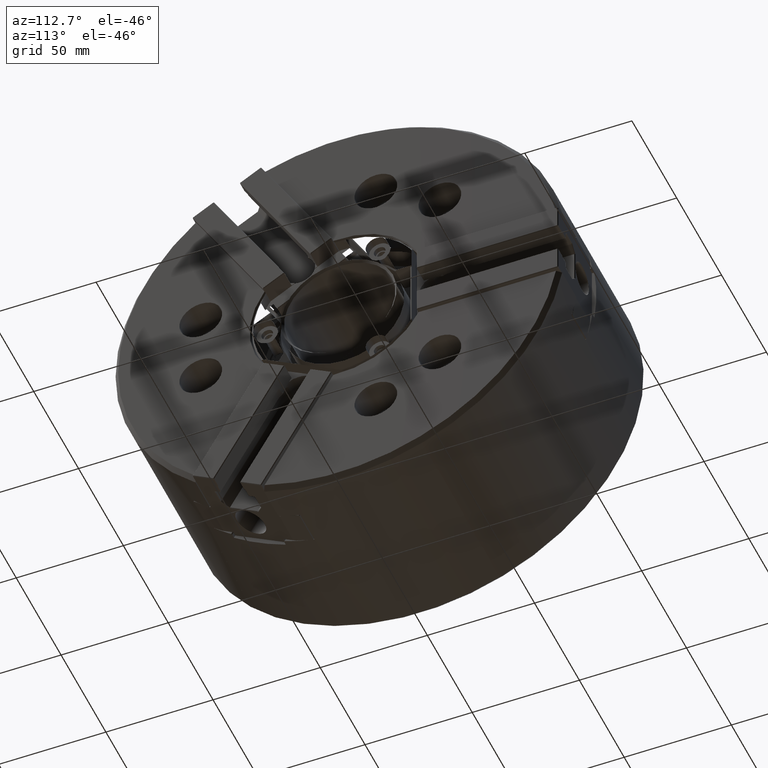
[diagram: clean part render]
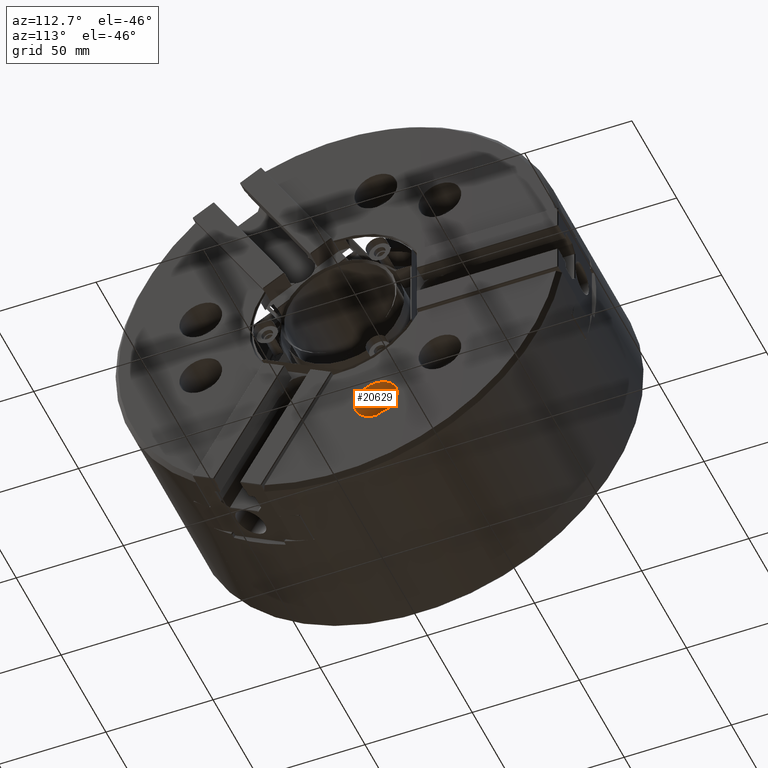
[diagram: same view with one face highlighted and labeled with its STEP entity id]
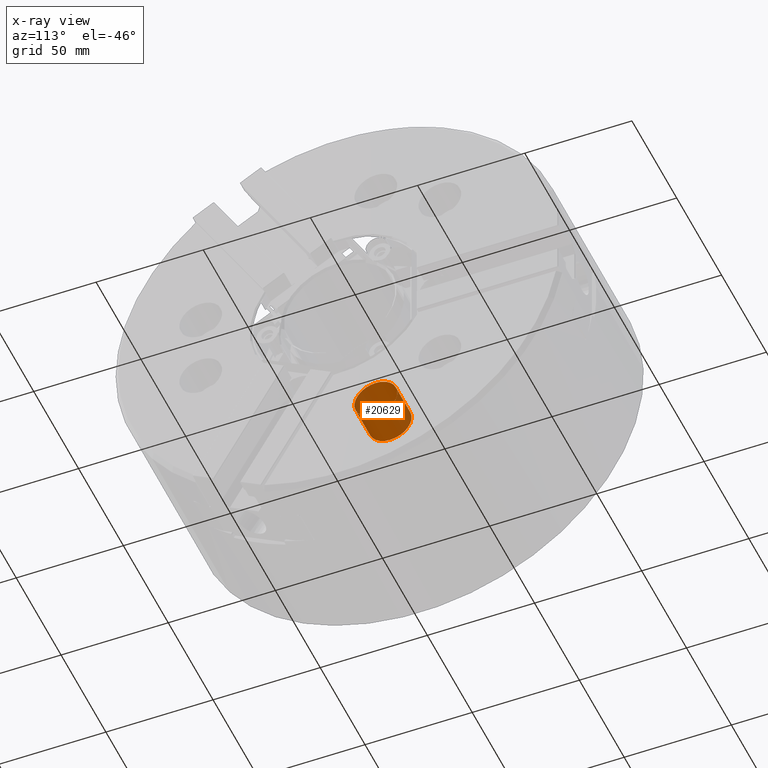
[diagram: x-ray of the same camera — body ghosted, the highlighted face saturated]
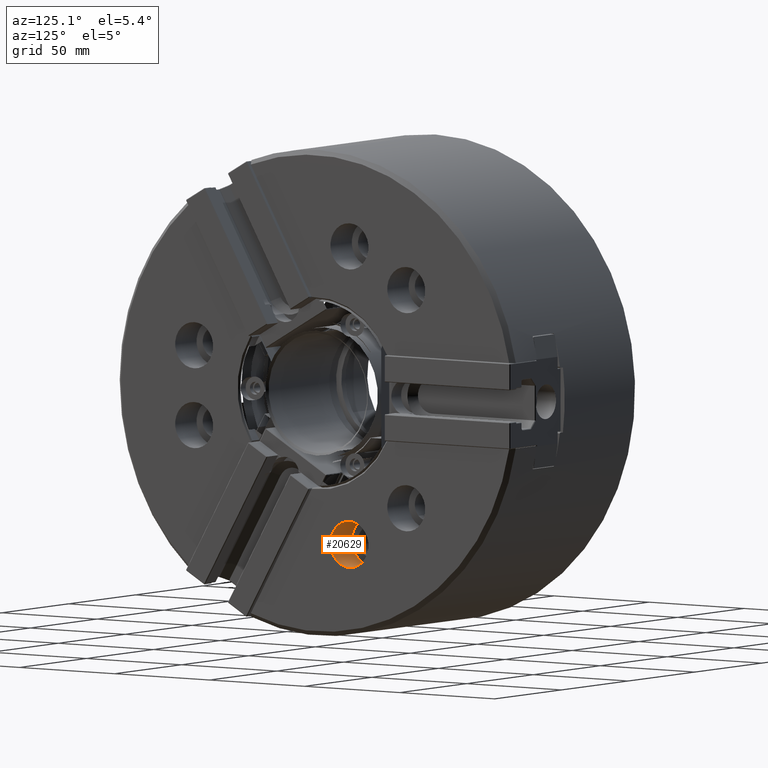
[diagram: same view with one face highlighted and labeled with its STEP entity id]
A machine part, auxiliary view. The second image highlights one B-rep face of the part: STEP entity #20629.
The next image is the same camera in x-ray: the body ghosted, the highlighted face saturated — about 0% of this face is hidden behind the body in this view.
A second angle (auxiliary view) of the same face is appended — the face is thin or edge-on in the first view.
In plain terms, the highlighted cylindrical surface (bore or boss wall) has radius 10 mm, axis along (-1, 0, 0).
Its self-contained STEP definition (entity closure, byte-faithful):
#6072=ORIENTED_EDGE('',*,*,#12104,.F.);
#6073=ORIENTED_EDGE('',*,*,#12105,.F.);
#12104=EDGE_CURVE('',#15096,#15096,#16862,.T.);
#12105=EDGE_CURVE('',#15097,#15097,#16863,.T.);
#15096=VERTEX_POINT('',#31001);
#15097=VERTEX_POINT('',#31003);
#16862=CIRCLE('',#22030,10.);
#16863=CIRCLE('',#22031,10.);
#17595=EDGE_LOOP('',(#6072));
#17596=EDGE_LOOP('',(#6073));
#19025=FACE_BOUND('',#17595,.T.);
#19026=FACE_BOUND('',#17596,.T.);
#20354=CYLINDRICAL_SURFACE('',#22029,10.);
#20629=ADVANCED_FACE('',(#19025,#19026),#20354,.F.);
#22029=AXIS2_PLACEMENT_3D('',#30999,#24586,#24587);
#22030=AXIS2_PLACEMENT_3D('',#31000,#24588,#24589);
#22031=AXIS2_PLACEMENT_3D('',#31002,#24590,#24591);
#24586=DIRECTION('',(-1.,0.,0.));
#24587=DIRECTION('',(0.,0.,-1.));
#24588=DIRECTION('',(-1.,0.,0.));
#24589=DIRECTION('',(0.,0.,-1.));
#24590=DIRECTION('',(1.,0.,0.));
#24591=DIRECTION('',(0.,0.,-1.));
#30999=CARTESIAN_POINT('',(-1.22623456790122,17.2632303083381,-64.4272526134809));
#31000=CARTESIAN_POINT('',(-1.22623456790122,17.2632303083381,-64.4272526134809));
#31001=CARTESIAN_POINT('',(-1.22623456790122,17.2632303083381,-74.4272526134809));
#31002=CARTESIAN_POINT('',(-17.2262345679012,17.2632303083381,-64.4272526134809));
#31003=CARTESIAN_POINT('',(-17.2262345679012,17.2632303083381,-74.4272526134809));